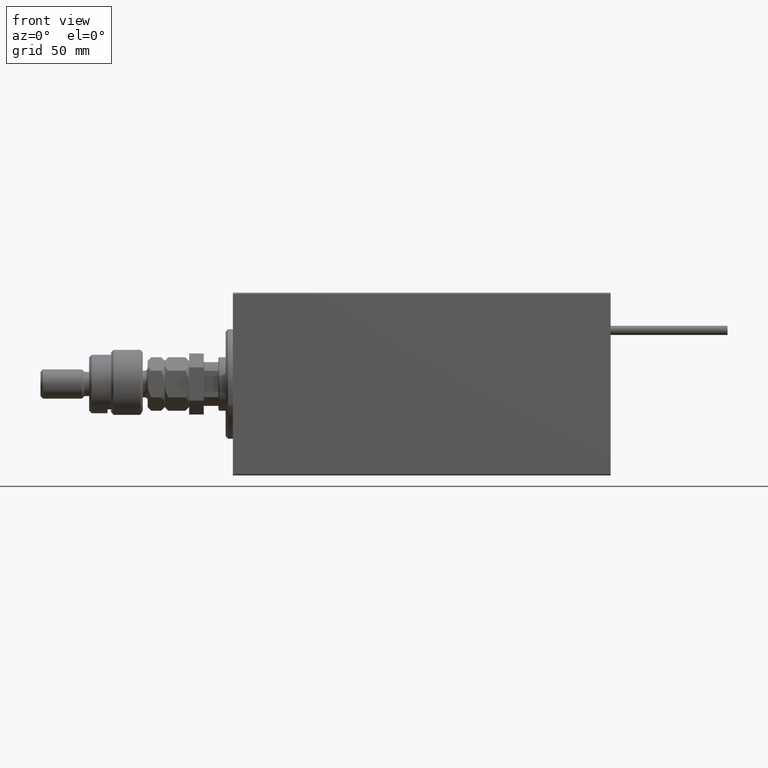
[diagram: clean part render]
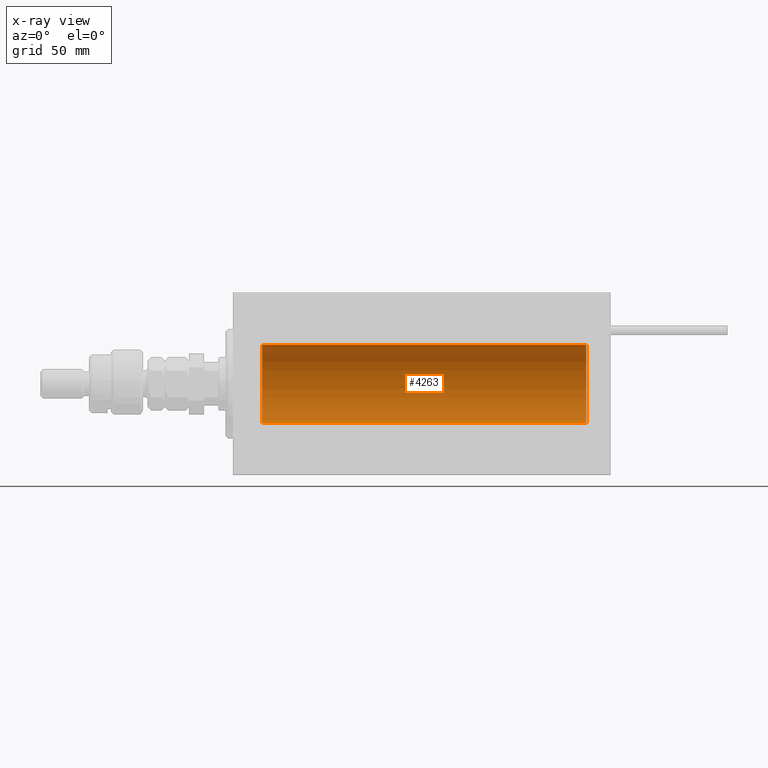
[diagram: x-ray — body ghosted, one internal face saturated and labeled with its STEP entity id]
A machine part, front view, then the same camera in x-ray: the body is ghosted and one INTERNAL B-rep face — a face not visible from any outside direction — is saturated and labeled: STEP entity #4263.
In plain terms, the highlighted cylindrical surface (partial cylindrical patch) has radius 16 mm, axis along (-1, -0, -0).
Its self-contained STEP definition (entity closure, byte-faithful):
#2084 = EDGE_CURVE ( 'NONE', #24514, #24541, #5068, .T. ) ;
#2921 = DIRECTION ( 'NONE',  ( -1.000000000000000000, 0.000000000000000000, 0.000000000000000000 ) ) ;
#2950 = CYLINDRICAL_SURFACE ( 'NONE', #7695, 16.00000000000000000 ) ;
#3208 = DIRECTION ( 'NONE',  ( -1.000000000000000000, -0.000000000000000000, -0.000000000000000000 ) ) ;
#3584 = CARTESIAN_POINT ( 'NONE',  ( 12.00000000000001066, 1.959434878635765131E-15, -16.00000000000000000 ) ) ;
#4263 = ADVANCED_FACE ( 'NONE', ( #15998 ), #2950, .F. ) ;
#4753 = LINE ( 'NONE', #48749, #39650 ) ;
#5068 = CIRCLE ( 'NONE', #16146, 16.00000000000000000 ) ;
#7695 = AXIS2_PLACEMENT_3D ( 'NONE', #52013, #3208, #31767 ) ;
#7938 = ORIENTED_EDGE ( 'NONE', *, *, #30590, .F. ) ;
#10218 = CARTESIAN_POINT ( 'NONE',  ( 12.00000000000001066, 0.000000000000000000, 0.000000000000000000 ) ) ;
#11782 = ORIENTED_EDGE ( 'NONE', *, *, #2084, .T. ) ;
#13350 = AXIS2_PLACEMENT_3D ( 'NONE', #27466, #2921, #19466 ) ;
#14215 = DIRECTION ( 'NONE',  ( -1.000000000000000000, 0.000000000000000000, 0.000000000000000000 ) ) ;
#15959 = DIRECTION ( 'NONE',  ( -1.000000000000000000, -0.000000000000000000, -0.000000000000000000 ) ) ;
#15998 = FACE_OUTER_BOUND ( 'NONE', #22772, .T. ) ;
#16146 = AXIS2_PLACEMENT_3D ( 'NONE', #10218, #14215, #34228 ) ;
#19466 = DIRECTION ( 'NONE',  ( 0.000000000000000000, 0.000000000000000000, 1.000000000000000000 ) ) ;
#20376 = EDGE_CURVE ( 'NONE', #48661, #24541, #4753, .T. ) ;
#22772 = EDGE_LOOP ( 'NONE', ( #35407, #7938, #37260, #11782 ) ) ;
#24514 = VERTEX_POINT ( 'NONE', #36651 ) ;
#24541 = VERTEX_POINT ( 'NONE', #3584 ) ;
#27466 = CARTESIAN_POINT ( 'NONE',  ( 145.0000000000000000, 0.000000000000000000, 0.000000000000000000 ) ) ;
#28345 = VECTOR ( 'NONE', #31879, 1000.000000000000000 ) ;
#28419 = CARTESIAN_POINT ( 'NONE',  ( 145.0000000000000000, 1.959434878635765131E-15, -16.00000000000000000 ) ) ;
#30359 = CIRCLE ( 'NONE', #13350, 16.00000000000000000 ) ;
#30590 = EDGE_CURVE ( 'NONE', #33788, #48661, #30359, .T. ) ;
#31767 = DIRECTION ( 'NONE',  ( 0.000000000000000000, 0.000000000000000000, 1.000000000000000000 ) ) ;
#31879 = DIRECTION ( 'NONE',  ( -1.000000000000000000, -0.000000000000000000, -0.000000000000000000 ) ) ;
#33788 = VERTEX_POINT ( 'NONE', #40082 ) ;
#34228 = DIRECTION ( 'NONE',  ( 0.000000000000000000, 0.000000000000000000, 1.000000000000000000 ) ) ;
#35407 = ORIENTED_EDGE ( 'NONE', *, *, #20376, .F. ) ;
#36651 = CARTESIAN_POINT ( 'NONE',  ( 12.00000000000001066, 0.000000000000000000, 16.00000000000000000 ) ) ;
#37260 = ORIENTED_EDGE ( 'NONE', *, *, #46587, .T. ) ;
#39650 = VECTOR ( 'NONE', #15959, 1000.000000000000000 ) ;
#40082 = CARTESIAN_POINT ( 'NONE',  ( 145.0000000000000000, 0.000000000000000000, 16.00000000000000000 ) ) ;
#46587 = EDGE_CURVE ( 'NONE', #33788, #24514, #47078, .T. ) ;
#47078 = LINE ( 'NONE', #47330, #28345 ) ;
#47330 = CARTESIAN_POINT ( 'NONE',  ( 145.0000000000000000, 0.000000000000000000, 16.00000000000000000 ) ) ;
#48661 = VERTEX_POINT ( 'NONE', #28419 ) ;
#48749 = CARTESIAN_POINT ( 'NONE',  ( 145.0000000000000000, 1.959434878635765131E-15, -16.00000000000000000 ) ) ;
#52013 = CARTESIAN_POINT ( 'NONE',  ( 145.0000000000000000, 0.000000000000000000, 0.000000000000000000 ) ) ;